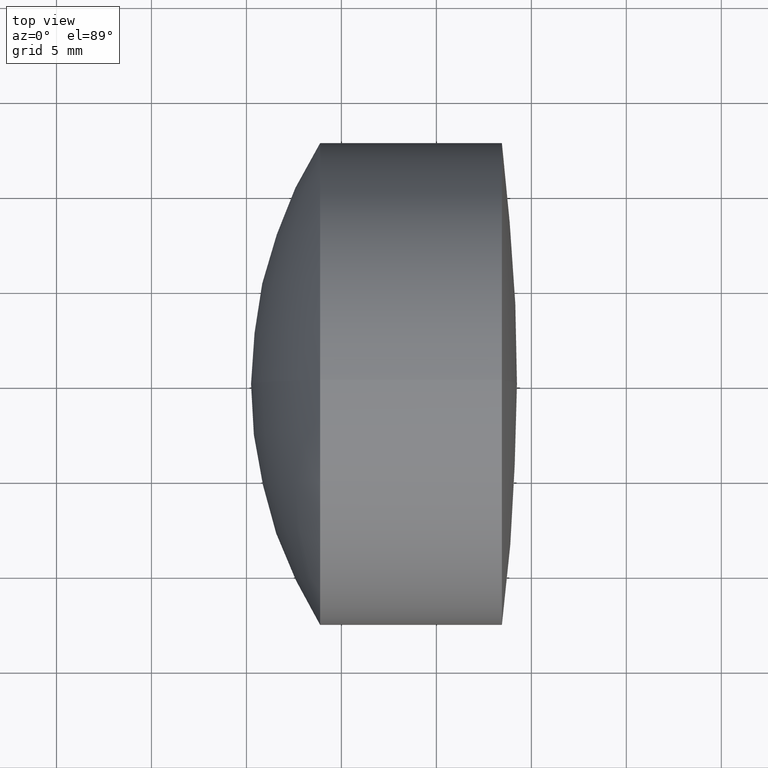
[diagram: clean part render]
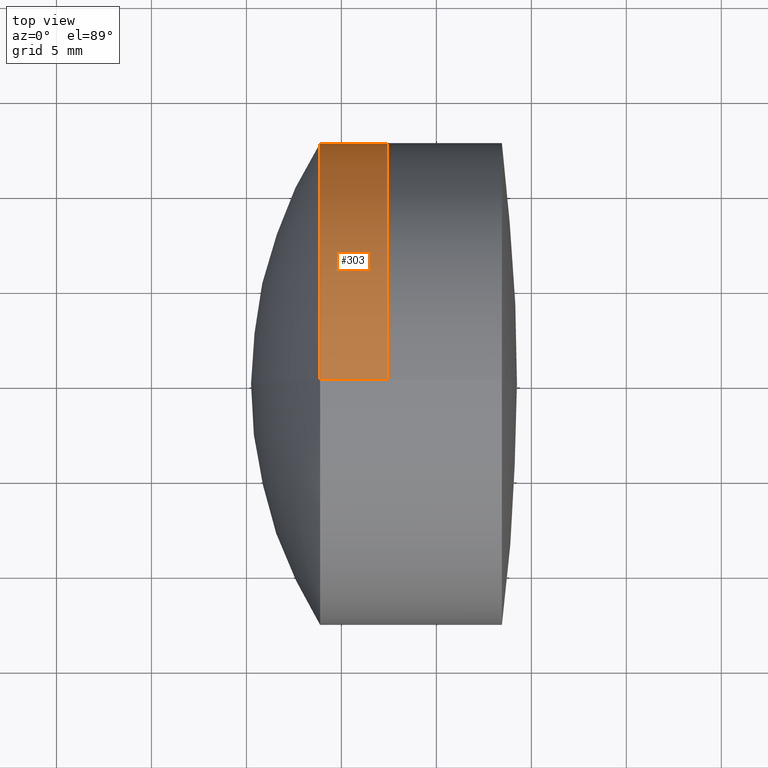
[diagram: same view with one face highlighted and labeled with its STEP entity id]
A machine part, top view. The second image highlights one B-rep face of the part: STEP entity #303.
In plain terms, the highlighted cylindrical surface (partial cylindrical patch) has radius 12.7 mm, axis along (-1, -0, -0).
Its self-contained STEP definition (entity closure, byte-faithful):
#2 = ORIENTED_EDGE ( 'NONE', *, *, #260, .T. ) ;
#8 = CYLINDRICAL_SURFACE ( 'NONE', #282, 12.69999999999999900 ) ;
#24 = ORIENTED_EDGE ( 'NONE', *, *, #34, .F. ) ;
#34 = EDGE_CURVE ( 'NONE', #128, #190, #332, .T. ) ;
#45 = DIRECTION ( 'NONE',  ( -1.000000000000000000, -0.0000000000000000000, -0.0000000000000000000 ) ) ;
#51 = DIRECTION ( 'NONE',  ( -1.000000000000000000, -0.0000000000000000000, -0.0000000000000000000 ) ) ;
#56 = CARTESIAN_POINT ( 'NONE',  ( 222.4082068579018300, 0.0000000000000000000, 0.0000000000000000000 ) ) ;
#57 = CARTESIAN_POINT ( 'NONE',  ( -9.702612178336682500, 1.555301434917138400E-015, -12.69999999999999900 ) ) ;
#58 = DIRECTION ( 'NONE',  ( -1.000000000000000000, -0.0000000000000000000, -0.0000000000000000000 ) ) ;
#59 = CARTESIAN_POINT ( 'NONE',  ( 222.4082068579018300, 0.0000000000000000000, 12.69999999999999900 ) ) ;
#78 = CARTESIAN_POINT ( 'NONE',  ( 218.8777334842955900, 0.0000000000000000000, 12.69999999999999900 ) ) ;
#82 = CARTESIAN_POINT ( 'NONE',  ( 222.4082068579018300, 1.555301434917138400E-015, -12.69999999999999900 ) ) ;
#94 = LINE ( 'NONE', #277, #339 ) ;
#95 = FACE_OUTER_BOUND ( 'NONE', #309, .T. ) ;
#96 = LINE ( 'NONE', #57, #220 ) ;
#107 = VERTEX_POINT ( 'NONE', #82 ) ;
#128 = VERTEX_POINT ( 'NONE', #78 ) ;
#131 = DIRECTION ( 'NONE',  ( 0.0000000000000000000, 0.0000000000000000000, 1.000000000000000000 ) ) ;
#151 = CARTESIAN_POINT ( 'NONE',  ( 218.8777334842955900, 1.555301434917138400E-015, -12.69999999999999900 ) ) ;
#166 = DIRECTION ( 'NONE',  ( -1.000000000000000000, -0.0000000000000000000, -0.0000000000000000000 ) ) ;
#171 = CARTESIAN_POINT ( 'NONE',  ( -9.702612178336682500, 0.0000000000000000000, 0.0000000000000000000 ) ) ;
#180 = ORIENTED_EDGE ( 'NONE', *, *, #323, .T. ) ;
#188 = AXIS2_PLACEMENT_3D ( 'NONE', #56, #166, #322 ) ;
#190 = VERTEX_POINT ( 'NONE', #151 ) ;
#194 = DIRECTION ( 'NONE',  ( -1.000000000000000000, -0.0000000000000000000, -0.0000000000000000000 ) ) ;
#200 = VERTEX_POINT ( 'NONE', #59 ) ;
#215 = EDGE_CURVE ( 'NONE', #200, #128, #94, .T. ) ;
#219 = DIRECTION ( 'NONE',  ( 0.0000000000000000000, 0.0000000000000000000, 1.000000000000000000 ) ) ;
#220 = VECTOR ( 'NONE', #45, 1000.000000000000000 ) ;
#243 = CARTESIAN_POINT ( 'NONE',  ( 218.8777334842955900, 0.0000000000000000000, 0.0000000000000000000 ) ) ;
#260 = EDGE_CURVE ( 'NONE', #200, #107, #313, .T. ) ;
#277 = CARTESIAN_POINT ( 'NONE',  ( -9.702612178336682500, 0.0000000000000000000, 12.69999999999999900 ) ) ;
#282 = AXIS2_PLACEMENT_3D ( 'NONE', #171, #194, #131 ) ;
#289 = AXIS2_PLACEMENT_3D ( 'NONE', #243, #51, #219 ) ;
#303 = ADVANCED_FACE ( 'NONE', ( #95 ), #8, .T. ) ;
#309 = EDGE_LOOP ( 'NONE', ( #2, #180, #24, #330 ) ) ;
#313 = CIRCLE ( 'NONE', #188, 12.69999999999999900 ) ;
#322 = DIRECTION ( 'NONE',  ( 0.0000000000000000000, 0.0000000000000000000, 1.000000000000000000 ) ) ;
#323 = EDGE_CURVE ( 'NONE', #107, #190, #96, .T. ) ;
#330 = ORIENTED_EDGE ( 'NONE', *, *, #215, .F. ) ;
#332 = CIRCLE ( 'NONE', #289, 12.69999999999999900 ) ;
#339 = VECTOR ( 'NONE', #58, 1000.000000000000000 ) ;